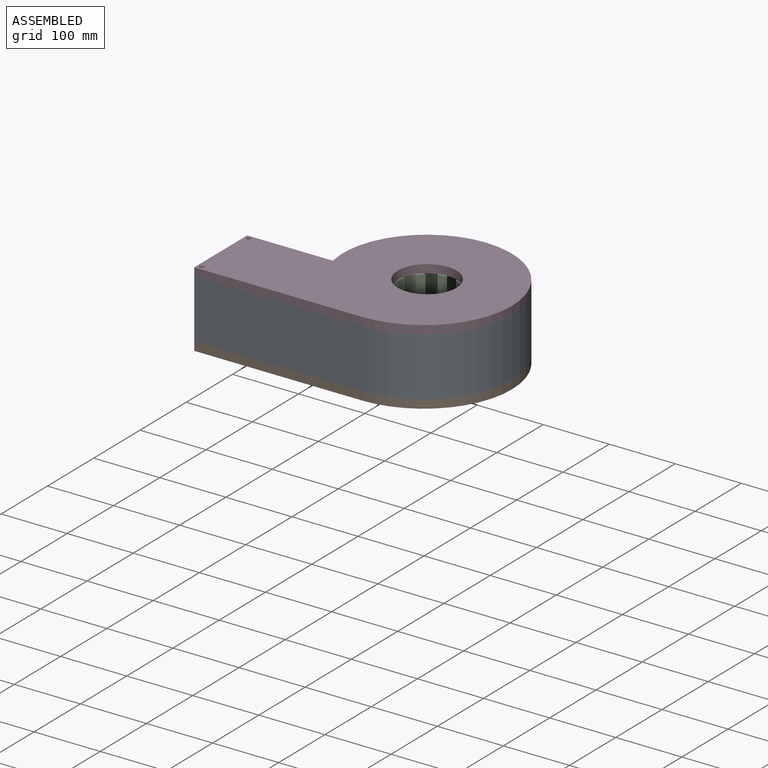
[diagram: assembled view]
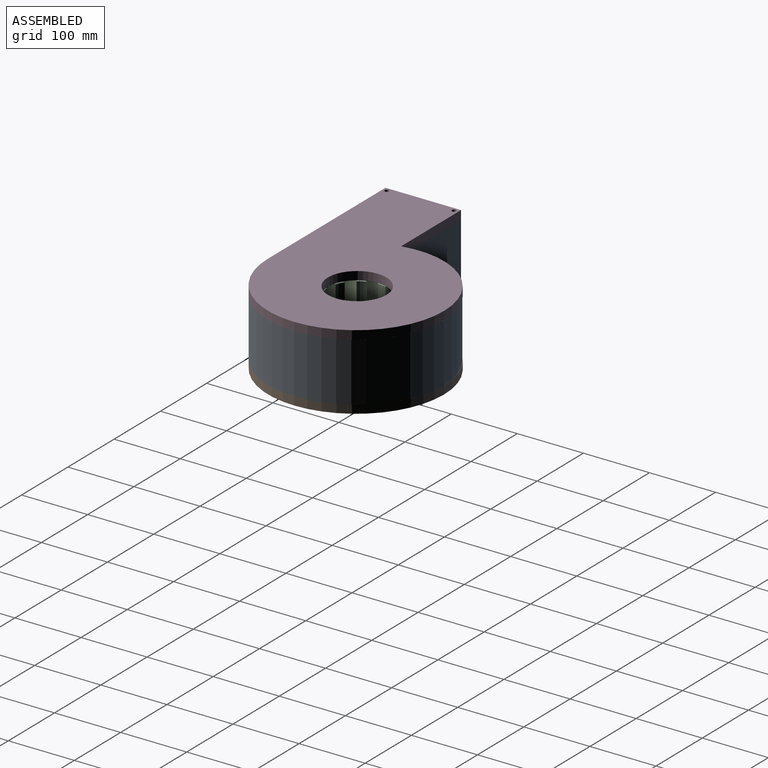
[diagram: assembled view, second angle]
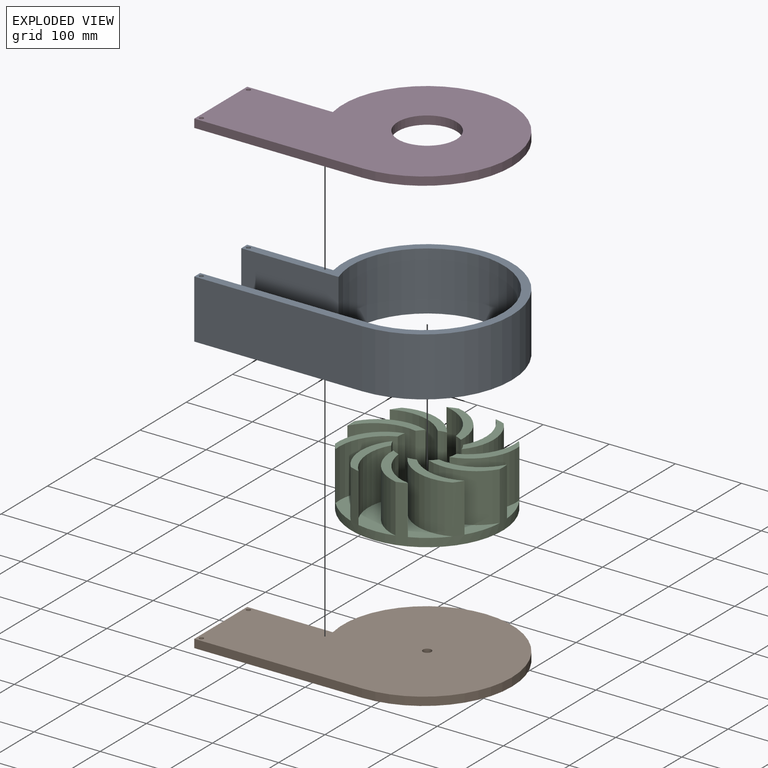
[diagram: exploded view]
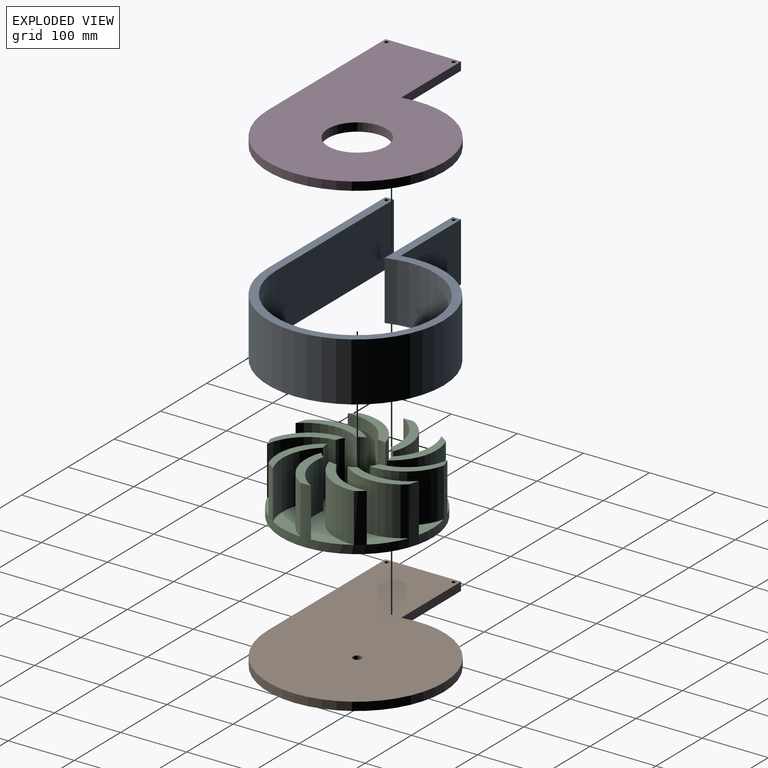
[diagram: exploded view, second angle]
ASSEMBLY  parts=4 mates=3
PART A: 14 faces, bbox 387.4x266.7x88.9 mm
  f0: cylinder r=114.3mm len=152.4mm, axis (0,0,-1), area 22161.1mm2, adj f1,f10,f12,f13
  f1: cylinder r=120.65mm len=237.15mm, axis (0,0,-1), area 30874mm2, adj f0,f2,f12,f13
  f2: plane 254x88.9mm, normal (0,1,0), area 22580.6mm2, adj f1,f3,f12,f13
  f3: plane 88.9x12.7mm, normal (-1,0,0), area 1129mm2, adj f2,f4,f12,f13
  f4: plane 254x88.9mm, normal (0,-1,0), area 22580.6mm2, adj f3,f5,f12,f13
  f5: cylinder r=133.35mm len=266.7mm, axis (0,0,-1), area 37166.6mm2, adj f4,f6,f12,f13
  f6: cylinder r=127mm len=152.4mm, axis (0,0,-1), area 20008.2mm2, adj f5,f7,f12,f13
  f7: plane 130.43x88.9mm, normal (0,1,0), area 11595.2mm2, adj f6,f8,f12,f13
  f8: plane 88.9x12.7mm, normal (-1,0,0), area 1129mm2, adj f7,f10,f12,f13
  f9: cylinder r=3.17mm len=88.9mm, axis (0,0,-1), area 1773.5mm2, adj f12,f13
  f10: plane 147.1x88.9mm, normal (0,-1,0), area 13077.2mm2, adj f0,f8,f12,f13
  f11: cylinder r=3.17mm len=88.9mm, axis (0,0,-1), area 1773.5mm2, adj f12,f13
  f12: plane 387.35x266.7mm, normal (0,0,1), area 12792.4mm2, adj f0,f1,f2,f3,f4,f5,f6,f7
  f13: plane 387.35x266.7mm, normal (0,0,-1), area 12792.4mm2, adj f0,f1,f2,f3,f4,f5,f6,f7
PART B: 10 faces, bbox 387.4x266.7x12.7 mm
  f0: plane 254x12.7mm, normal (0,-1,0), area 3225.8mm2, adj f1,f7,f8,f9
  f1: cylinder r=133.35mm len=266.7mm, axis (0,0,-1), area 5320.4mm2, adj f0,f2,f8,f9
  f2: cylinder r=127mm len=152.4mm, axis (0,0,-1), area 2858.3mm2, adj f1,f3,f8,f9
  f3: plane 129.57x12.7mm, normal (0,1,0), area 1645.5mm2, adj f2,f7,f8,f9
  f4: cylinder r=3.17mm len=12.7mm, axis (0,0,-1), area 253.4mm2, adj f8,f9
  f5: cylinder r=3.17mm len=12.7mm, axis (0,0,-1), area 253.4mm2, adj f8,f9
  f6: cylinder r=6.35mm len=12.7mm, axis (0,0,-1), area 506.7mm2, adj f8,f9
  f7: plane 114.3x12.7mm, normal (-1,0,0), area 1451.6mm2, adj f0,f3,f8,f9
  f8: plane 387.35x266.7mm, normal (0,0,1), area 72646.3mm2, adj f0,f1,f2,f3,f4,f5,f6,f7
  f9: plane 387.35x266.7mm, normal (0,0,-1), area 72646.3mm2, adj f0,f1,f2,f3,f4,f5,f6,f7
PART C: 45 faces, bbox 228.6x228.6x100.3 mm
  f0: plane 228.6x228.28mm, normal (0,0,1), area 29797mm2, adj f1,f3,f4,f5,f7,f8,f9,f11
  f1: cylinder r=114.3mm len=228.6mm, axis (0,0,-1), area 20833.2mm2, adj f0,f2,f4,f5,f6,f8,f9,f10
  f2: plane 228.6x228.6mm, normal (0,0,-1), area 40916.6mm2, adj f1,f43
  f3: cylinder r=44.45mm len=73.66mm, axis (0,0,-1), area 948.7mm2, adj f0,f4,f5,f6
  f4: cylinder r=71.05mm len=87.68mm, axis (0,0,-1), area 7362.4mm2, adj f0,f1,f3,f6
  f5: cylinder r=72.05mm len=84.15mm, axis (0,0,-1), area 6769.9mm2, adj f0,f1,f3,f6
  f6: plane 96.8x35.31mm, normal (0,0,1), area 1124.6mm2, adj f1,f3,f4,f5
  f7: cylinder r=44.45mm len=73.66mm, axis (0,0,-1), area 948.7mm2, adj f0,f8,f9,f10
  f8: cylinder r=71.05mm len=87.14mm, axis (0,0,-1), area 7362.4mm2, adj f0,f1,f7,f10
  f9: cylinder r=72.05mm len=77.92mm, axis (0,0,-1), area 6769.9mm2, adj f0,f1,f7,f10
  f10: plane 87.3x50.17mm, normal (0,0,1), area 1124.6mm2, adj f1,f7,f8,f9
  f11: cylinder r=44.45mm len=73.66mm, axis (0,0,-1), area 948.7mm2, adj f0,f12,f13,f14
  f12: cylinder r=71.05mm len=74.86mm, axis (0,0,-1), area 7362.4mm2, adj f0,f1,f11,f14
  f13: cylinder r=72.05mm len=74.86mm, axis (0,0,-1), area 6769.9mm2, adj f0,f1,f11,f14
  f14: plane 87.56x53.57mm, normal (0,0,1), area 1124.6mm2, adj f1,f11,f12,f13
  f15: cylinder r=44.45mm len=73.66mm, axis (0,0,-1), area 948.7mm2, adj f0,f16,f17,f18
  f16: cylinder r=71.05mm len=91.91mm, axis (0,0,-1), area 7362.4mm2, adj f0,f1,f15,f18
  f17: cylinder r=72.05mm len=85.21mm, axis (0,0,-1), area 6769.9mm2, adj f0,f1,f15,f18
  f18: plane 96.57x32.49mm, normal (0,0,1), area 1124.6mm2, adj f1,f15,f16,f17
  f19: cylinder r=44.45mm len=73.66mm, axis (0,0,-1), area 948.7mm2, adj f0,f20,f21,f22
  f20: cylinder r=71.05mm len=73.85mm, axis (0,0,-1), area 7362.4mm2, adj f0,f1,f19,f22
  f21: cylinder r=72.05mm len=73.66mm, axis (0,0,-1), area 6769.9mm2, adj f0,f1,f19,f22
  f22: plane 73.85x69.9mm, normal (0,0,1), area 1124.6mm2, adj f1,f19,f20,f21
  f23: cylinder r=44.45mm len=73.66mm, axis (0,0,-1), area 948.7mm2, adj f0,f24,f25,f26
  f24: cylinder r=71.05mm len=87.68mm, axis (0,0,-1), area 7362.4mm2, adj f0,f1,f23,f26
  f25: cylinder r=72.05mm len=84.15mm, axis (0,0,-1), area 6769.9mm2, adj f0,f1,f23,f26
  f26: plane 96.8x35.31mm, normal (0,0,1), area 1124.6mm2, adj f1,f23,f24,f25
  f27: cylinder r=44.45mm len=73.66mm, axis (0,0,-1), area 948.7mm2, adj f0,f28,f29,f30
  f28: cylinder r=71.05mm len=87.14mm, axis (0,0,-1), area 7362.4mm2, adj f0,f1,f27,f30
  f29: cylinder r=72.05mm len=77.92mm, axis (0,0,-1), area 6769.9mm2, adj f0,f1,f27,f30
  f30: plane 87.3x50.17mm, normal (0,0,1), area 1124.6mm2, adj f1,f27,f28,f29
  f31: cylinder r=44.45mm len=73.66mm, axis (0,0,-1), area 948.7mm2, adj f0,f32,f33,f34
  f32: cylinder r=71.05mm len=74.86mm, axis (0,0,-1), area 7362.4mm2, adj f0,f1,f31,f34
  f33: cylinder r=72.05mm len=74.86mm, axis (0,0,-1), area 6769.9mm2, adj f0,f1,f31,f34
  f34: plane 87.56x53.57mm, normal (0,0,1), area 1124.6mm2, adj f1,f31,f32,f33
  f35: cylinder r=44.45mm len=73.66mm, axis (0,0,-1), area 948.7mm2, adj f0,f36,f37,f38
  f36: cylinder r=71.05mm len=91.91mm, axis (0,0,-1), area 7362.4mm2, adj f0,f1,f35,f38
  f37: cylinder r=72.05mm len=85.21mm, axis (0,0,-1), area 6769.9mm2, adj f0,f1,f35,f38
  f38: plane 96.57x32.49mm, normal (0,0,1), area 1124.6mm2, adj f1,f35,f36,f37
  f39: cylinder r=44.45mm len=73.66mm, axis (0,0,-1), area 948.7mm2, adj f0,f40,f41,f42
  f40: cylinder r=71.05mm len=73.85mm, axis (0,0,-1), area 7362.4mm2, adj f0,f1,f39,f42
  f41: cylinder r=72.05mm len=73.66mm, axis (0,0,-1), area 6769.9mm2, adj f0,f1,f39,f42
  f42: plane 73.85x69.9mm, normal (0,0,1), area 1124.6mm2, adj f1,f39,f40,f41
  f43: cylinder r=6.35mm len=13.97mm, axis (0,0,1), area 557.4mm2, adj f2,f44
  f44: plane 12.7x12.7mm, normal (0,0,-1), area 126.7mm2, adj f43
PART D: 10 faces, bbox 387.4x266.7x12.7 mm
  f0: plane 254x12.7mm, normal (0,-1,0), area 3225.8mm2, adj f1,f7,f8,f9
  f1: cylinder r=133.35mm len=266.7mm, axis (0,0,-1), area 5320.4mm2, adj f0,f2,f8,f9
  f2: cylinder r=127mm len=152.4mm, axis (0,0,-1), area 2858.3mm2, adj f1,f3,f8,f9
  f3: plane 129.57x12.7mm, normal (0,1,0), area 1645.5mm2, adj f2,f7,f8,f9
  f4: cylinder r=3.17mm len=12.7mm, axis (0,0,-1), area 253.4mm2, adj f8,f9
  f5: cylinder r=3.17mm len=12.7mm, axis (0,0,-1), area 253.4mm2, adj f8,f9
  f6: cylinder r=44.45mm len=88.9mm, axis (0,0,-1), area 3547mm2, adj f8,f9
  f7: plane 114.3x12.7mm, normal (-1,0,0), area 1451.6mm2, adj f0,f3,f8,f9
  f8: plane 387.35x266.7mm, normal (0,0,1), area 66565.8mm2, adj f0,f1,f2,f3,f4,f5,f6,f7
  f9: plane 387.35x266.7mm, normal (0,0,-1), area 66565.8mm2, adj f0,f1,f2,f3,f4,f5,f6,f7
PLACE A t=(-14.36,241.98,422.52)mm
PLACE B t=(-15.23,241.98,409.82)mm
PLACE C rot(axis=(0,0,-1),90deg) t=(-12.69,239.11,423.79)mm
PLACE D t=(-23,106.43,511.42)mm
MATE revolute C.f43 <-> B.f6  axis (0,0,-1) through (-12.69,239.11,409.82)mm
MATE fastened A.f9 <-> D.f4  axis (0,0,1) through (-262.88,210.23,511.42)mm
MATE fastened A.f9 <-> B.f4  axis (0,0,-1) through (-262.88,210.23,422.52)mm
